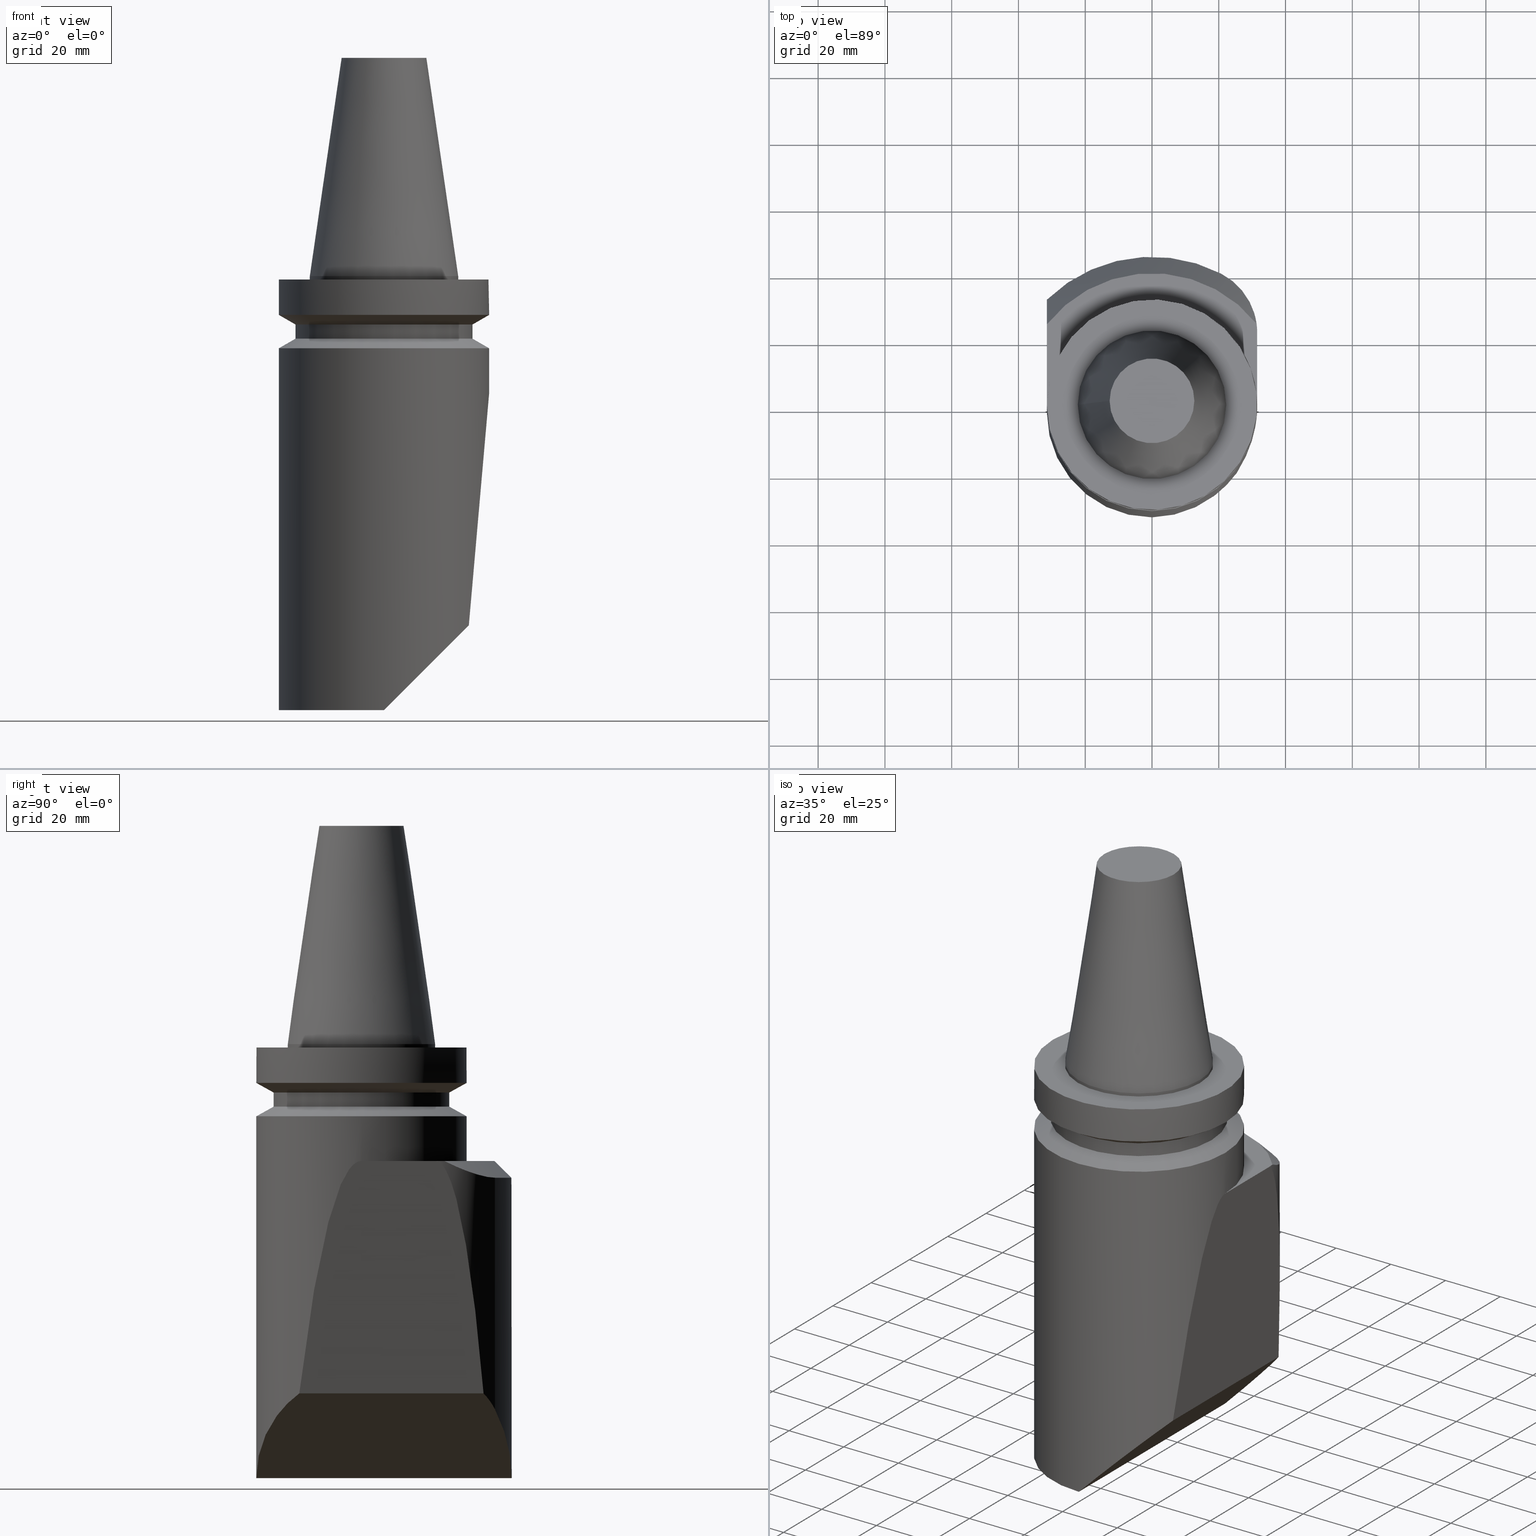
[diagram: canonical four-view strip — front | top / right | iso, engineering-drawing reading convention]
A machine part, canonical four-view strip (front | top / right | iso — engineering-drawing reading convention). The complete STEP part file that produces these views, byte-faithful:
ISO-10303-21;
HEADER;
FILE_DESCRIPTION((''),'1');
FILE_NAME('T:/21_DXF\X2\30C730FC30BF4F5C621057FA6E96\X0\/BBT40M-180-BH25L-130.stp','2017-05-02T05:34:34',(''),(''),'Spatial Interop R21 SP3','Kubotek KeyCreator 2011 V10.0.2 (22737)',' ');
FILE_SCHEMA(('automotive_design'));
ENDSEC;
DATA;
#1=MECHANICAL_DESIGN_GEOMETRIC_PRESENTATION_REPRESENTATION(' ',(#10,#11,#12,#13,#14,#15,#16,#17,#18,#19,#20,#21,#22,#23,#24,#25,#26,#27,#28,#29,#30,#31,#32,#33,#34,#35,#36,#37,#38,#39,#40,#41,#42,#43,#44,#45,#46,#47,#48,#49,#50,#51,#52,#53,#54,#55,#56,#57,#58,#59,#60,#61,#62,#63,#64,#65,#66,#67,#68,#69,#70,#71),#6);
#2=PRODUCT_DEFINITION_CONTEXT('',#72,'design');
#3=APPLICATION_PROTOCOL_DEFINITION('INTERNATIONAL STANDARD','automotive_design',1994,#72);
#4=PRODUCT_CATEGORY_RELATIONSHIP('NONE','NONE',#73,#74);
#5=SHAPE_DEFINITION_REPRESENTATION(#75,#76);
#6= (GEOMETRIC_REPRESENTATION_CONTEXT(3)GLOBAL_UNCERTAINTY_ASSIGNED_CONTEXT((#79))GLOBAL_UNIT_ASSIGNED_CONTEXT((#81,#82,#83))REPRESENTATION_CONTEXT('NONE','WORKSPACE'));
#10=STYLED_ITEM('',(#85),#86);
#11=STYLED_ITEM('',(#87,#88),#89);
#12=STYLED_ITEM('',(#90),#91);
#13=STYLED_ITEM('',(#92),#93);
#14=STYLED_ITEM('',(#94,#95),#96);
#15=STYLED_ITEM('',(#97,#98),#99);
#16=STYLED_ITEM('',(#100),#101);
#17=STYLED_ITEM('',(#102),#103);
#18=STYLED_ITEM('',(#104),#105);
#19=STYLED_ITEM('',(#106),#107);
#20=STYLED_ITEM('',(#108),#109);
#21=STYLED_ITEM('',(#110),#111);
#22=STYLED_ITEM('',(#112,#113),#114);
#23=STYLED_ITEM('',(#115),#116);
#24=STYLED_ITEM('',(#117),#118);
#25=STYLED_ITEM('',(#119),#120);
#26=STYLED_ITEM('',(#121),#122);
#27=STYLED_ITEM('',(#123),#124);
#28=STYLED_ITEM('',(#125),#126);
#29=STYLED_ITEM('',(#127),#128);
#30=STYLED_ITEM('',(#129,#130),#131);
#31=STYLED_ITEM('',(#132,#133),#134);
#32=STYLED_ITEM('',(#135),#136);
#33=STYLED_ITEM('',(#137),#138);
#34=STYLED_ITEM('',(#139,#140),#141);
#35=STYLED_ITEM('',(#142),#143);
#36=STYLED_ITEM('',(#144,#145),#146);
#37=STYLED_ITEM('',(#147,#148),#149);
#38=STYLED_ITEM('',(#150),#151);
#39=STYLED_ITEM('',(#152,#153),#154);
#40=STYLED_ITEM('',(#155),#156);
#41=STYLED_ITEM('',(#157),#158);
#42=STYLED_ITEM('',(#159),#160);
#43=STYLED_ITEM('',(#161),#162);
#44=STYLED_ITEM('',(#163,#164),#165);
#45=STYLED_ITEM('',(#166),#167);
#46=STYLED_ITEM('',(#168),#169);
#47=STYLED_ITEM('',(#170,#171),#172);
#48=STYLED_ITEM('',(#173,#174),#175);
#49=STYLED_ITEM('',(#176),#177);
#50=STYLED_ITEM('',(#178),#179);
#51=STYLED_ITEM('',(#180,#181),#182);
#52=STYLED_ITEM('',(#183,#184),#185);
#53=STYLED_ITEM('',(#186,#187),#188);
#54=STYLED_ITEM('',(#189,#190),#191);
#55=STYLED_ITEM('',(#192),#193);
#56=STYLED_ITEM('',(#194),#195);
#57=STYLED_ITEM('',(#196),#197);
#58=STYLED_ITEM('',(#198),#199);
#59=STYLED_ITEM('',(#200,#201),#202);
#60=STYLED_ITEM('',(#203),#204);
#61=STYLED_ITEM('',(#205),#206);
#62=STYLED_ITEM('',(#207),#208);
#63=STYLED_ITEM('',(#209),#210);
#64=STYLED_ITEM('',(#211),#212);
#65=STYLED_ITEM('',(#213,#214),#215);
#66=STYLED_ITEM('',(#216,#217),#218);
#67=STYLED_ITEM('',(#219),#220);
#68=STYLED_ITEM('',(#221,#222),#223);
#69=STYLED_ITEM('',(#224,#225),#226);
#70=STYLED_ITEM('',(#227),#228);
#71=STYLED_ITEM('',(#229),#230);
#72=APPLICATION_CONTEXT(' ');
#73=PRODUCT_CATEGORY('part','NONE');
#74=PRODUCT_RELATED_PRODUCT_CATEGORY('detail',' ',(#231));
#75=PRODUCT_DEFINITION_SHAPE('NONE','NONE',#232);
#76=ADVANCED_BREP_SHAPE_REPRESENTATION('240[2]',(#89,#233),#6);
#79=UNCERTAINTY_MEASURE_WITH_UNIT(LENGTH_MEASURE(1.0E-006),#81,'','');
#81= (CONVERSION_BASED_UNIT('MILLIMETRE',#236)LENGTH_UNIT()NAMED_UNIT(#239));
#82= (NAMED_UNIT(#241)PLANE_ANGLE_UNIT()SI_UNIT($,.RADIAN.));
#83= (NAMED_UNIT(#241)SOLID_ANGLE_UNIT()SI_UNIT($,.STERADIAN.));
#85=PRESENTATION_STYLE_ASSIGNMENT((#247));
#86=EDGE_CURVE('240[2]',#248,#249,#250,.T.);
#87=PRESENTATION_STYLE_ASSIGNMENT((#251));
#88=PRESENTATION_STYLE_ASSIGNMENT((#252));
#89=MANIFOLD_SOLID_BREP('240[2]',#253);
#90=PRESENTATION_STYLE_ASSIGNMENT((#254));
#91=EDGE_CURVE('240[2]',#255,#248,#256,.T.);
#92=PRESENTATION_STYLE_ASSIGNMENT((#257));
#93=EDGE_CURVE('240[2]',#258,#259,#260,.T.);
#94=PRESENTATION_STYLE_ASSIGNMENT((#261));
#95=PRESENTATION_STYLE_ASSIGNMENT((#262));
#96=ADVANCED_FACE('240[2]',(#263),#264,.F.);
#97=PRESENTATION_STYLE_ASSIGNMENT((#265));
#98=PRESENTATION_STYLE_ASSIGNMENT((#266));
#99=ADVANCED_FACE('240[2]',(#267),#268,.F.);
#100=PRESENTATION_STYLE_ASSIGNMENT((#269));
#101=EDGE_CURVE('240[2]',#259,#270,#271,.F.);
#102=PRESENTATION_STYLE_ASSIGNMENT((#272));
#103=EDGE_CURVE('240[2]',#273,#274,#275,.T.);
#104=PRESENTATION_STYLE_ASSIGNMENT((#276));
#105=EDGE_CURVE('240[2]',#277,#278,#279,.T.);
#106=PRESENTATION_STYLE_ASSIGNMENT((#280));
#107=EDGE_CURVE('240[2]',#281,#258,#282,.F.);
#108=PRESENTATION_STYLE_ASSIGNMENT((#283));
#109=EDGE_CURVE('240[2]',#284,#285,#286,.F.);
#110=PRESENTATION_STYLE_ASSIGNMENT((#287));
#111=EDGE_CURVE('240[2]',#288,#288,#289,.T.);
#112=PRESENTATION_STYLE_ASSIGNMENT((#290));
#113=PRESENTATION_STYLE_ASSIGNMENT((#291));
#114=ADVANCED_FACE('240[2]',(#292),#293,.T.);
#115=PRESENTATION_STYLE_ASSIGNMENT((#294));
#116=EDGE_CURVE('240[2]',#277,#255,#295,.T.);
#117=PRESENTATION_STYLE_ASSIGNMENT((#296));
#118=EDGE_CURVE('240[2]',#278,#297,#298,.T.);
#119=PRESENTATION_STYLE_ASSIGNMENT((#299));
#120=EDGE_CURVE('240[2]',#277,#300,#301,.T.);
#121=PRESENTATION_STYLE_ASSIGNMENT((#302));
#122=EDGE_CURVE('240[2]',#303,#303,#304,.T.);
#123=PRESENTATION_STYLE_ASSIGNMENT((#305));
#124=EDGE_CURVE('240[2]',#297,#255,#306,.T.);
#125=PRESENTATION_STYLE_ASSIGNMENT((#307));
#126=EDGE_CURVE('240[2]',#259,#273,#308,.T.);
#127=PRESENTATION_STYLE_ASSIGNMENT((#309));
#128=EDGE_CURVE('240[2]',#270,#285,#310,.T.);
#129=PRESENTATION_STYLE_ASSIGNMENT((#311));
#130=PRESENTATION_STYLE_ASSIGNMENT((#312));
#131=ADVANCED_FACE('240[2]',(#313),#314,.T.);
#132=PRESENTATION_STYLE_ASSIGNMENT((#315));
#133=PRESENTATION_STYLE_ASSIGNMENT((#316));
#134=ADVANCED_FACE('240[2]',(#317),#318,.T.);
#135=PRESENTATION_STYLE_ASSIGNMENT((#319));
#136=EDGE_CURVE('240[2]',#249,#297,#320,.T.);
#137=PRESENTATION_STYLE_ASSIGNMENT((#321));
#138=EDGE_CURVE('240[2]',#322,#278,#323,.T.);
#139=PRESENTATION_STYLE_ASSIGNMENT((#324));
#140=PRESENTATION_STYLE_ASSIGNMENT((#325));
#141=ADVANCED_FACE('240[2]',(#326),#327,.T.);
#142=PRESENTATION_STYLE_ASSIGNMENT((#328));
#143=EDGE_CURVE('240[2]',#285,#329,#330,.T.);
#144=PRESENTATION_STYLE_ASSIGNMENT((#331));
#145=PRESENTATION_STYLE_ASSIGNMENT((#332));
#146=ADVANCED_FACE('240[2]',(#333),#334,.T.);
#147=PRESENTATION_STYLE_ASSIGNMENT((#335));
#148=PRESENTATION_STYLE_ASSIGNMENT((#336));
#149=ADVANCED_FACE('240[2]',(#337),#338,.F.);
#150=PRESENTATION_STYLE_ASSIGNMENT((#339));
#151=EDGE_CURVE('240[2]',#340,#277,#341,.T.);
#152=PRESENTATION_STYLE_ASSIGNMENT((#342));
#153=PRESENTATION_STYLE_ASSIGNMENT((#343));
#154=ADVANCED_FACE('240[2]',(#344,#345),#346,.T.);
#155=PRESENTATION_STYLE_ASSIGNMENT((#347));
#156=EDGE_CURVE('240[2]',#348,#348,#349,.T.);
#157=PRESENTATION_STYLE_ASSIGNMENT((#350));
#158=EDGE_CURVE('240[2]',#340,#351,#352,.T.);
#159=PRESENTATION_STYLE_ASSIGNMENT((#353));
#160=EDGE_CURVE('240[2]',#274,#281,#354,.T.);
#161=PRESENTATION_STYLE_ASSIGNMENT((#355));
#162=EDGE_CURVE('240[2]',#248,#258,#356,.T.);
#163=PRESENTATION_STYLE_ASSIGNMENT((#357));
#164=PRESENTATION_STYLE_ASSIGNMENT((#358));
#165=ADVANCED_FACE('240[2]',(#359,#360),#361,.F.);
#166=PRESENTATION_STYLE_ASSIGNMENT((#362));
#167=EDGE_CURVE('240[2]',#351,#281,#363,.T.);
#168=PRESENTATION_STYLE_ASSIGNMENT((#364));
#169=EDGE_CURVE('240[2]',#365,#365,#366,.T.);
#170=PRESENTATION_STYLE_ASSIGNMENT((#367));
#171=PRESENTATION_STYLE_ASSIGNMENT((#368));
#172=ADVANCED_FACE('240[2]',(#369),#370,.T.);
#173=PRESENTATION_STYLE_ASSIGNMENT((#371));
#174=PRESENTATION_STYLE_ASSIGNMENT((#372));
#175=ADVANCED_FACE('240[2]',(#373),#374,.T.);
#176=PRESENTATION_STYLE_ASSIGNMENT((#375));
#177=EDGE_CURVE('240[2]',#376,#376,#377,.T.);
#178=PRESENTATION_STYLE_ASSIGNMENT((#378));
#179=EDGE_CURVE('240[2]',#322,#300,#379,.T.);
#180=PRESENTATION_STYLE_ASSIGNMENT((#380));
#181=PRESENTATION_STYLE_ASSIGNMENT((#381));
#182=ADVANCED_FACE('240[2]',(#382,#383),#384,.T.);
#183=PRESENTATION_STYLE_ASSIGNMENT((#385));
#184=PRESENTATION_STYLE_ASSIGNMENT((#386));
#185=ADVANCED_FACE('240[2]',(#387,#388),#389,.T.);
#186=PRESENTATION_STYLE_ASSIGNMENT((#390));
#187=PRESENTATION_STYLE_ASSIGNMENT((#391));
#188=ADVANCED_FACE('240[2]',(#392,#393),#394,.T.);
#189=PRESENTATION_STYLE_ASSIGNMENT((#395));
#190=PRESENTATION_STYLE_ASSIGNMENT((#396));
#191=ADVANCED_FACE('240[2]',(#397,#398),#399,.T.);
#192=PRESENTATION_STYLE_ASSIGNMENT((#400));
#193=EDGE_CURVE('240[2]',#401,#284,#402,.T.);
#194=PRESENTATION_STYLE_ASSIGNMENT((#403));
#195=EDGE_CURVE('240[2]',#404,#351,#405,.T.);
#196=PRESENTATION_STYLE_ASSIGNMENT((#406));
#197=EDGE_CURVE('240[2]',#407,#407,#408,.T.);
#198=PRESENTATION_STYLE_ASSIGNMENT((#409));
#199=EDGE_CURVE('240[2]',#404,#401,#410,.T.);
#200=PRESENTATION_STYLE_ASSIGNMENT((#411));
#201=PRESENTATION_STYLE_ASSIGNMENT((#412));
#202=ADVANCED_FACE('240[2]',(#413),#414,.F.);
#203=PRESENTATION_STYLE_ASSIGNMENT((#415));
#204=EDGE_CURVE('240[2]',#249,#322,#416,.T.);
#205=PRESENTATION_STYLE_ASSIGNMENT((#417));
#206=EDGE_CURVE('240[2]',#418,#418,#419,.T.);
#207=PRESENTATION_STYLE_ASSIGNMENT((#420));
#208=EDGE_CURVE('240[2]',#421,#421,#422,.T.);
#209=PRESENTATION_STYLE_ASSIGNMENT((#423));
#210=EDGE_CURVE('240[2]',#300,#270,#424,.T.);
#211=PRESENTATION_STYLE_ASSIGNMENT((#425));
#212=EDGE_CURVE('240[2]',#274,#404,#426,.T.);
#213=PRESENTATION_STYLE_ASSIGNMENT((#427));
#214=PRESENTATION_STYLE_ASSIGNMENT((#428));
#215=ADVANCED_FACE('240[2]',(#429),#430,.T.);
#216=PRESENTATION_STYLE_ASSIGNMENT((#431));
#217=PRESENTATION_STYLE_ASSIGNMENT((#432));
#218=ADVANCED_FACE('240[2]',(#433,#434),#435,.T.);
#219=PRESENTATION_STYLE_ASSIGNMENT((#436));
#220=EDGE_CURVE('240[2]',#329,#340,#437,.T.);
#221=PRESENTATION_STYLE_ASSIGNMENT((#438));
#222=PRESENTATION_STYLE_ASSIGNMENT((#439));
#223=ADVANCED_FACE('240[2]',(#440,#441),#442,.T.);
#224=PRESENTATION_STYLE_ASSIGNMENT((#443));
#225=PRESENTATION_STYLE_ASSIGNMENT((#444));
#226=ADVANCED_FACE('240[2]',(#445),#446,.T.);
#227=PRESENTATION_STYLE_ASSIGNMENT((#447));
#228=EDGE_CURVE('240[2]',#401,#329,#448,.T.);
#229=PRESENTATION_STYLE_ASSIGNMENT((#449));
#230=EDGE_CURVE('240[2]',#273,#284,#450,.F.);
#231=PRODUCT('240[2]','240[2]','PART-240[2]-DESC',(#451));
#232=PRODUCT_DEFINITION('NONE','NONE',#452,#2);
#233=AXIS2_PLACEMENT_3D('',#453,#454,#455);
#236=LENGTH_MEASURE_WITH_UNIT(LENGTH_MEASURE(1.0),#456);
#239=DIMENSIONAL_EXPONENTS(1.0,0.0,0.0,0.0,0.0,0.0,0.0);
#241=DIMENSIONAL_EXPONENTS(0.0,0.0,0.0,0.0,0.0,0.0,0.0);
#247=CURVE_STYLE('',#457,POSITIVE_LENGTH_MEASURE(1000.0),#458);
#248=VERTEX_POINT('',#459);
#249=VERTEX_POINT('',#460);
#250=LINE('',#461,#462);
#251=SURFACE_STYLE_USAGE(.BOTH.,#463);
#252=CURVE_STYLE('',#464,POSITIVE_LENGTH_MEASURE(1000.0),#465);
#253=CLOSED_SHELL('',(#114,#226,#146,#96,#175,#134,#149,#141,#182,#215,#131,#172,#99,#202,#154,#218,#165,#185,#188,#191,#223));
#254=CURVE_STYLE('',#466,POSITIVE_LENGTH_MEASURE(1000.0),#467);
#255=VERTEX_POINT('',#468);
#256=LINE('',#469,#470);
#257=CURVE_STYLE('',#471,POSITIVE_LENGTH_MEASURE(1000.0),#472);
#258=VERTEX_POINT('',#473);
#259=VERTEX_POINT('',#474);
#260=CIRCLE('',#475,45.0);
#261=SURFACE_STYLE_USAGE(.BOTH.,#476);
#262=CURVE_STYLE('',#477,POSITIVE_LENGTH_MEASURE(1000.0),#478);
#263=FACE_OUTER_BOUND('',#479,.T.);
#264=PLANE('',#480);
#265=SURFACE_STYLE_USAGE(.BOTH.,#481);
#266=CURVE_STYLE('',#482,POSITIVE_LENGTH_MEASURE(1000.0),#483);
#267=FACE_OUTER_BOUND('',#484,.T.);
#268=PLANE('',#485);
#269=CURVE_STYLE('',#486,POSITIVE_LENGTH_MEASURE(1000.0),#487);
#270=VERTEX_POINT('',#488);
#271=LINE('',#489,#490);
#272=CURVE_STYLE('',#491,POSITIVE_LENGTH_MEASURE(1000.0),#492);
#273=VERTEX_POINT('',#493);
#274=VERTEX_POINT('',#494);
#275=LINE('',#495,#496);
#276=CURVE_STYLE('',#497,POSITIVE_LENGTH_MEASURE(1000.0),#498);
#277=VERTEX_POINT('',#499);
#278=VERTEX_POINT('',#500);
#279=LINE('',#501,#502);
#280=CURVE_STYLE('',#503,POSITIVE_LENGTH_MEASURE(1000.0),#504);
#281=VERTEX_POINT('',#505);
#282=LINE('',#506,#507);
#283=CURVE_STYLE('',#508,POSITIVE_LENGTH_MEASURE(1000.0),#509);
#284=VERTEX_POINT('',#510);
#285=VERTEX_POINT('',#511);
#286=LINE('',#512,#513);
#287=CURVE_STYLE('',#514,POSITIVE_LENGTH_MEASURE(1000.0),#515);
#288=VERTEX_POINT('',#516);
#289=CIRCLE('',#517,22.225);
#290=SURFACE_STYLE_USAGE(.BOTH.,#518);
#291=CURVE_STYLE('',#519,POSITIVE_LENGTH_MEASURE(1000.0),#520);
#292=FACE_OUTER_BOUND('',#521,.T.);
#293=PLANE('',#522);
#294=CURVE_STYLE('',#523,POSITIVE_LENGTH_MEASURE(1000.0),#524);
#295=LINE('',#525,#526);
#296=CURVE_STYLE('',#527,POSITIVE_LENGTH_MEASURE(1000.0),#528);
#297=VERTEX_POINT('',#529);
#298=LINE('',#530,#531);
#299=CURVE_STYLE('',#532,POSITIVE_LENGTH_MEASURE(1000.0),#533);
#300=VERTEX_POINT('',#534);
#301=LINE('',#535,#536);
#302=CURVE_STYLE('',#537,POSITIVE_LENGTH_MEASURE(1000.0),#538);
#303=VERTEX_POINT('',#539);
#304=CIRCLE('',#540,31.5);
#305=CURVE_STYLE('',#541,POSITIVE_LENGTH_MEASURE(1000.0),#542);
#306=LINE('',#543,#544);
#307=CURVE_STYLE('',#545,POSITIVE_LENGTH_MEASURE(1000.0),#546);
#308=ELLIPSE('',#547,63.6396103067893,45.0);
#309=CURVE_STYLE('',#548,POSITIVE_LENGTH_MEASURE(1000.0),#549);
#310=ELLIPSE('',#550,44.5477272147525,31.5);
#311=SURFACE_STYLE_USAGE(.BOTH.,#551);
#312=CURVE_STYLE('',#552,POSITIVE_LENGTH_MEASURE(1000.0),#553);
#313=FACE_OUTER_BOUND('',#554,.T.);
#314=PLANE('',#555);
#315=SURFACE_STYLE_USAGE(.BOTH.,#556);
#316=CURVE_STYLE('',#557,POSITIVE_LENGTH_MEASURE(1000.0),#558);
#317=FACE_OUTER_BOUND('',#559,.T.);
#318=CYLINDRICAL_SURFACE('',#560,20.0);
#319=CURVE_STYLE('',#561,POSITIVE_LENGTH_MEASURE(1000.0),#562);
#320=LINE('',#563,#564);
#321=CURVE_STYLE('',#565,POSITIVE_LENGTH_MEASURE(1000.0),#566);
#322=VERTEX_POINT('',#567);
#323=LINE('',#568,#569);
#324=SURFACE_STYLE_USAGE(.BOTH.,#570);
#325=CURVE_STYLE('',#571,POSITIVE_LENGTH_MEASURE(1000.0),#572);
#326=FACE_OUTER_BOUND('',#573,.T.);
#327=CYLINDRICAL_SURFACE('',#574,45.0);
#328=CURVE_STYLE('',#575,POSITIVE_LENGTH_MEASURE(1000.0),#576);
#329=VERTEX_POINT('',#577);
#330=ELLIPSE('',#578,361.421967366517,31.5);
#331=SURFACE_STYLE_USAGE(.BOTH.,#579);
#332=CURVE_STYLE('',#580,POSITIVE_LENGTH_MEASURE(1000.0),#581);
#333=FACE_OUTER_BOUND('',#582,.T.);
#334=PLANE('',#583);
#335=SURFACE_STYLE_USAGE(.BOTH.,#584);
#336=CURVE_STYLE('',#585,POSITIVE_LENGTH_MEASURE(1000.0),#586);
#337=FACE_OUTER_BOUND('',#587,.T.);
#338=PLANE('',#588);
#339=CURVE_STYLE('',#589,POSITIVE_LENGTH_MEASURE(1000.0),#590);
#340=VERTEX_POINT('',#591);
#341=LINE('',#592,#593);
#342=SURFACE_STYLE_USAGE(.BOTH.,#594);
#343=CURVE_STYLE('',#595,POSITIVE_LENGTH_MEASURE(1000.0),#596);
#344=FACE_BOUND('',#597,.T.);
#345=FACE_BOUND('',#598,.T.);
#346=CONICAL_SURFACE('',#599,17.4562500022463,0.144812498171676);
#347=CURVE_STYLE('',#600,POSITIVE_LENGTH_MEASURE(1000.0),#601);
#348=VERTEX_POINT('',#602);
#349=CIRCLE('',#603,12.6875000044926);
#350=CURVE_STYLE('',#604,POSITIVE_LENGTH_MEASURE(1000.0),#605);
#351=VERTEX_POINT('',#606);
#352=LINE('',#607,#608);
#353=CURVE_STYLE('',#609,POSITIVE_LENGTH_MEASURE(1000.0),#610);
#354=CIRCLE('',#611,45.0);
#355=CURVE_STYLE('',#612,POSITIVE_LENGTH_MEASURE(1000.0),#613);
#356=LINE('',#614,#615);
#357=SURFACE_STYLE_USAGE(.BOTH.,#616);
#358=CURVE_STYLE('',#617,POSITIVE_LENGTH_MEASURE(1000.0),#618);
#359=FACE_OUTER_BOUND('',#619,.T.);
#360=FACE_BOUND('',#620,.T.);
#361=PLANE('',#621);
#362=CURVE_STYLE('',#622,POSITIVE_LENGTH_MEASURE(1000.0),#623);
#363=(B_SPLINE_CURVE(2,(#625,#626,#627),.UNSPECIFIED.,.F.,.F.)B_SPLINE_CURVE_WITH_KNOTS((3,3),(1269.79654633776,1343.3851522784),.UNSPECIFIED.)RATIONAL_B_SPLINE_CURVE((9.88857542016709,9.5972301136978,9.24226330118482))BOUNDED_CURVE()REPRESENTATION_ITEM('')GEOMETRIC_REPRESENTATION_ITEM()CURVE());
#364=CURVE_STYLE('',#634,POSITIVE_LENGTH_MEASURE(1000.0),#635);
#365=VERTEX_POINT('',#636);
#366=CIRCLE('',#637,31.5);
#367=SURFACE_STYLE_USAGE(.BOTH.,#638);
#368=CURVE_STYLE('',#639,POSITIVE_LENGTH_MEASURE(1000.0),#640);
#369=FACE_OUTER_BOUND('',#641,.T.);
#370=CONICAL_SURFACE('',#642,42.5,0.785398163397448);
#371=SURFACE_STYLE_USAGE(.BOTH.,#643);
#372=CURVE_STYLE('',#644,POSITIVE_LENGTH_MEASURE(1000.0),#645);
#373=FACE_OUTER_BOUND('',#646,.T.);
#374=PLANE('',#647);
#375=CURVE_STYLE('',#648,POSITIVE_LENGTH_MEASURE(1000.0),#649);
#376=VERTEX_POINT('',#650);
#377=CIRCLE('',#651,22.225);
#378=CURVE_STYLE('',#652,POSITIVE_LENGTH_MEASURE(1000.0),#653);
#379=LINE('',#654,#655);
#380=SURFACE_STYLE_USAGE(.BOTH.,#656);
#381=CURVE_STYLE('',#657,POSITIVE_LENGTH_MEASURE(1000.0),#658);
#382=FACE_BOUND('',#659,.T.);
#383=FACE_BOUND('',#660,.T.);
#384=CYLINDRICAL_SURFACE('',#661,31.5);
#385=SURFACE_STYLE_USAGE(.BOTH.,#662);
#386=CURVE_STYLE('',#663,POSITIVE_LENGTH_MEASURE(1000.0),#664);
#387=FACE_BOUND('',#665,.T.);
#388=FACE_BOUND('',#666,.T.);
#389=CONICAL_SURFACE('',#667,29.0,1.04719755058882);
#390=SURFACE_STYLE_USAGE(.BOTH.,#668);
#391=CURVE_STYLE('',#669,POSITIVE_LENGTH_MEASURE(1000.0),#670);
#392=FACE_BOUND('',#671,.T.);
#393=FACE_BOUND('',#672,.T.);
#394=CYLINDRICAL_SURFACE('',#673,26.5);
#395=SURFACE_STYLE_USAGE(.BOTH.,#674);
#396=CURVE_STYLE('',#675,POSITIVE_LENGTH_MEASURE(1000.0),#676);
#397=FACE_BOUND('',#677,.T.);
#398=FACE_BOUND('',#678,.T.);
#399=CONICAL_SURFACE('',#679,29.0,1.04719755058882);
#400=CURVE_STYLE('',#680,POSITIVE_LENGTH_MEASURE(1000.0),#681);
#401=VERTEX_POINT('',#682);
#402=ELLIPSE('',#683,229.474264994614,20.0);
#403=CURVE_STYLE('',#684,POSITIVE_LENGTH_MEASURE(1000.0),#685);
#404=VERTEX_POINT('',#686);
#405=CIRCLE('',#687,40.0);
#406=CURVE_STYLE('',#688,POSITIVE_LENGTH_MEASURE(1000.0),#689);
#407=VERTEX_POINT('',#690);
#408=CIRCLE('',#691,26.5);
#409=CURVE_STYLE('',#692,POSITIVE_LENGTH_MEASURE(1000.0),#693);
#410=CIRCLE('',#694,20.0);
#411=SURFACE_STYLE_USAGE(.BOTH.,#695);
#412=CURVE_STYLE('',#696,POSITIVE_LENGTH_MEASURE(1000.0),#697);
#413=FACE_OUTER_BOUND('',#698,.T.);
#414=PLANE('',#699);
#415=CURVE_STYLE('',#700,POSITIVE_LENGTH_MEASURE(1000.0),#701);
#416=LINE('',#702,#703);
#417=CURVE_STYLE('',#704,POSITIVE_LENGTH_MEASURE(1000.0),#705);
#418=VERTEX_POINT('',#706);
#419=CIRCLE('',#707,26.5);
#420=CURVE_STYLE('',#708,POSITIVE_LENGTH_MEASURE(1000.0),#709);
#421=VERTEX_POINT('',#710);
#422=CIRCLE('',#711,31.5);
#423=CURVE_STYLE('',#712,POSITIVE_LENGTH_MEASURE(1000.0),#713);
#424=CIRCLE('',#714,31.5);
#425=CURVE_STYLE('',#715,POSITIVE_LENGTH_MEASURE(1000.0),#716);
#426=B_SPLINE_CURVE_WITH_KNOTS('',3,(#717,#718,#719,#720,#721,#722,#723,#724,#725,#726,#727,#728),.UNSPECIFIED.,.F.,.F.,(4,2,2,2,2,4),(3.6448240647727,4.06943192137555,4.49403977797839,4.91864763458123,5.34325549118408,5.58489350391862),.UNSPECIFIED.);
#427=SURFACE_STYLE_USAGE(.BOTH.,#729);
#428=CURVE_STYLE('',#730,POSITIVE_LENGTH_MEASURE(1000.0),#731);
#429=FACE_OUTER_BOUND('',#732,.T.);
#430=PLANE('',#733);
#431=SURFACE_STYLE_USAGE(.BOTH.,#734);
#432=CURVE_STYLE('',#735,POSITIVE_LENGTH_MEASURE(1000.0),#736);
#433=FACE_BOUND('',#737,.T.);
#434=FACE_BOUND('',#738,.T.);
#435=CYLINDRICAL_SURFACE('',#739,22.225);
#436=CURVE_STYLE('',#740,POSITIVE_LENGTH_MEASURE(1000.0),#741);
#437=CIRCLE('',#742,31.5);
#438=SURFACE_STYLE_USAGE(.BOTH.,#743);
#439=CURVE_STYLE('',#744,POSITIVE_LENGTH_MEASURE(1000.0),#745);
#440=FACE_BOUND('',#746,.T.);
#441=FACE_BOUND('',#747,.T.);
#442=CYLINDRICAL_SURFACE('',#748,31.5);
#443=SURFACE_STYLE_USAGE(.BOTH.,#749);
#444=CURVE_STYLE('',#750,POSITIVE_LENGTH_MEASURE(1000.0),#751);
#445=FACE_OUTER_BOUND('',#752,.T.);
#446=PLANE('',#753);
#447=CURVE_STYLE('',#754,POSITIVE_LENGTH_MEASURE(1000.0),#755);
#448=LINE('',#756,#757);
#449=CURVE_STYLE('',#758,POSITIVE_LENGTH_MEASURE(1000.0),#759);
#450=ELLIPSE('',#760,28.2842712474619,20.0);
#451=PRODUCT_CONTEXT('',#72,'mechanical');
#452=PRODUCT_DEFINITION_FORMATION_WITH_SPECIFIED_SOURCE(' ','NONE',#231,.NOT_KNOWN.);
#453=CARTESIAN_POINT('',(0.0,0.0,0.0));
#454=DIRECTION('',(0.0,0.0,1.0));
#455=DIRECTION('',(1.0,0.0,0.0));
#456= (NAMED_UNIT(#239)LENGTH_UNIT()SI_UNIT(.MILLI.,.METRE.));
#457=DRAUGHTING_PRE_DEFINED_CURVE_FONT('continuous');
#458=COLOUR_RGB('',0.0,1.0,1.0);
#459=CARTESIAN_POINT('',(-31.4999999979768,25.0,-130.0));
#460=CARTESIAN_POINT('',(-6.5000056898272,25.0,-130.0));
#461=CARTESIAN_POINT('',(-30.4999999979768,25.0,-130.0));
#462=VECTOR('',#762,23.9999943081496);
#463=SURFACE_SIDE_STYLE('',(#763));
#464=DRAUGHTING_PRE_DEFINED_CURVE_FONT('continuous');
#465=COLOUR_RGB('',0.0,1.0,1.0);
#466=DRAUGHTING_PRE_DEFINED_CURVE_FONT('continuous');
#467=COLOUR_RGB('',0.0,1.0,1.0);
#468=CARTESIAN_POINT('',(-31.5000056898272,25.0,-40.0));
#469=CARTESIAN_POINT('',(-31.4999999979768,25.0,-40.0));
#470=VECTOR('',#764,89.000000002308);
#471=DRAUGHTING_PRE_DEFINED_CURVE_FONT('continuous');
#472=COLOUR_RGB('',0.0,1.0,1.0);
#473=CARTESIAN_POINT('',(-31.4999999979768,32.136427930426,-130.0));
#474=CARTESIAN_POINT('',(6.03176401738128E-009,45.0,-130.0));
#475=AXIS2_PLACEMENT_3D('',#765,#766,#767);
#476=SURFACE_SIDE_STYLE('',(#768));
#477=DRAUGHTING_PRE_DEFINED_CURVE_FONT('continuous');
#478=COLOUR_RGB('',0.0,1.0,1.0);
#479=EDGE_LOOP('',(#769,#770,#771,#772));
#480=AXIS2_PLACEMENT_3D('',#773,#774,#775);
#481=SURFACE_SIDE_STYLE('',(#776));
#482=DRAUGHTING_PRE_DEFINED_CURVE_FONT('continuous');
#483=COLOUR_RGB('',0.0,1.0,1.0);
#484=EDGE_LOOP('',(#777,#778,#779,#780,#781,#782,#783));
#485=AXIS2_PLACEMENT_3D('',#784,#785,#786);
#486=DRAUGHTING_PRE_DEFINED_CURVE_FONT('continuous');
#487=COLOUR_RGB('',0.0,1.0,1.0);
#488=CARTESIAN_POINT('',(6.03177338592929E-009,-31.5,-130.0));
#489=CARTESIAN_POINT('',(6.03176952829187E-009,-7.4257880526741E-015,-130.0));
#490=VECTOR('',#787,1.0);
#491=DRAUGHTING_PRE_DEFINED_CURVE_FONT('continuous');
#492=COLOUR_RGB('',0.0,1.0,1.0);
#493=CARTESIAN_POINT('',(20.7000000005566,39.9563511844732,-109.300000005474));
#494=CARTESIAN_POINT('',(20.7000000003111,39.9563511842665,-39.9999999997035));
#495=CARTESIAN_POINT('',(20.7000000003111,39.9563511839994,-109.1129855535));
#496=VECTOR('',#788,69.1129855537965);
#497=DRAUGHTING_PRE_DEFINED_CURVE_FONT('continuous');
#498=COLOUR_RGB('',0.0,1.0,1.0);
#499=CARTESIAN_POINT('',(-31.5000056898272,-8.23575076947025E-015,-40.0));
#500=CARTESIAN_POINT('',(-6.50000568982718,-3.64332527266767E-015,-40.0));
#501=CARTESIAN_POINT('',(-31.5000056898272,-8.23575076947025E-015,-40.0));
#502=VECTOR('',#789,25.0);
#503=DRAUGHTING_PRE_DEFINED_CURVE_FONT('continuous');
#504=COLOUR_RGB('',0.0,1.0,1.0);
#505=CARTESIAN_POINT('',(-31.4999999979768,32.136427930426,-40.0));
#506=CARTESIAN_POINT('',(-31.4999999979768,32.136427930426,-83.0));
#507=VECTOR('',#790,1.0);
#508=DRAUGHTING_PRE_DEFINED_CURVE_FONT('continuous');
#509=COLOUR_RGB('',0.0,1.0,1.0);
#510=CARTESIAN_POINT('',(25.4118234369349,36.5667295647082,-104.588176569097));
#511=CARTESIAN_POINT('',(25.4118234369349,-18.6142211658196,-104.588176569097));
#512=CARTESIAN_POINT('',(25.4118234369349,-1.7361025483191E-015,-104.588176569097));
#513=VECTOR('',#791,1.0);
#514=DRAUGHTING_PRE_DEFINED_CURVE_FONT('continuous');
#515=COLOUR_RGB('',0.0,1.0,1.0);
#516=CARTESIAN_POINT('',(-22.225,-4.08266626665749E-015,2.72177751110499E-015));
#517=AXIS2_PLACEMENT_3D('',#792,#793,#794);
#518=SURFACE_SIDE_STYLE('',(#795));
#519=DRAUGHTING_PRE_DEFINED_CURVE_FONT('continuous');
#520=COLOUR_RGB('',0.0,1.0,1.0);
#521=EDGE_LOOP('',(#796,#797,#798,#799));
#522=AXIS2_PLACEMENT_3D('',#800,#801,#802);
#523=DRAUGHTING_PRE_DEFINED_CURVE_FONT('continuous');
#524=COLOUR_RGB('',0.0,1.0,1.0);
#525=CARTESIAN_POINT('',(-31.4999999979768,-8.88178419700125E-015,-40.0));
#526=VECTOR('',#803,25.0);
#527=DRAUGHTING_PRE_DEFINED_CURVE_FONT('continuous');
#528=COLOUR_RGB('',0.0,1.0,1.0);
#529=CARTESIAN_POINT('',(-6.50000568982719,25.0,-40.0));
#530=CARTESIAN_POINT('',(-6.50000568982718,-3.64332527266767E-015,-40.0));
#531=VECTOR('',#804,25.0);
#532=DRAUGHTING_PRE_DEFINED_CURVE_FONT('continuous');
#533=COLOUR_RGB('',0.0,1.0,1.0);
#534=CARTESIAN_POINT('',(-31.5,-1.27363272337346E-014,-130.0));
#535=CARTESIAN_POINT('',(-31.4999999979768,-1.37466603200574E-014,-40.0));
#536=VECTOR('',#805,89.000000002308);
#537=DRAUGHTING_PRE_DEFINED_CURVE_FONT('continuous');
#538=COLOUR_RGB('',0.0,1.0,1.0);
#539=CARTESIAN_POINT('',(-31.5,-5.84768846592861E-015,-0.999999999999996));
#540=AXIS2_PLACEMENT_3D('',#806,#807,#808);
#541=DRAUGHTING_PRE_DEFINED_CURVE_FONT('continuous');
#542=COLOUR_RGB('',0.0,1.0,1.0);
#543=CARTESIAN_POINT('',(-6.50000568982719,25.0,-40.0));
#544=VECTOR('',#809,25.0);
#545=DRAUGHTING_PRE_DEFINED_CURVE_FONT('continuous');
#546=COLOUR_RGB('',0.0,1.0,1.0);
#547=AXIS2_PLACEMENT_3D('',#810,#811,#812);
#548=DRAUGHTING_PRE_DEFINED_CURVE_FONT('continuous');
#549=COLOUR_RGB('',0.0,1.0,1.0);
#550=AXIS2_PLACEMENT_3D('',#813,#814,#815);
#551=SURFACE_SIDE_STYLE('',(#816));
#552=DRAUGHTING_PRE_DEFINED_CURVE_FONT('continuous');
#553=COLOUR_RGB('',0.0,1.0,1.0);
#554=EDGE_LOOP('',(#817,#818,#819,#820,#821));
#555=AXIS2_PLACEMENT_3D('',#822,#823,#824);
#556=SURFACE_SIDE_STYLE('',(#825));
#557=DRAUGHTING_PRE_DEFINED_CURVE_FONT('continuous');
#558=COLOUR_RGB('',0.0,1.0,1.0);
#559=EDGE_LOOP('',(#826,#827,#828,#829,#830));
#560=AXIS2_PLACEMENT_3D('',#831,#832,#833);
#561=DRAUGHTING_PRE_DEFINED_CURVE_FONT('continuous');
#562=COLOUR_RGB('',0.0,1.0,1.0);
#563=CARTESIAN_POINT('',(-6.5000056898272,25.0,-130.0));
#564=VECTOR('',#834,90.0);
#565=DRAUGHTING_PRE_DEFINED_CURVE_FONT('continuous');
#566=COLOUR_RGB('',0.0,1.0,1.0);
#567=CARTESIAN_POINT('',(-6.50000568982719,-9.15423586883077E-015,-130.0));
#568=CARTESIAN_POINT('',(-6.50000568982719,-9.15423586883077E-015,-130.0));
#569=VECTOR('',#835,90.0);
#570=SURFACE_SIDE_STYLE('',(#836));
#571=DRAUGHTING_PRE_DEFINED_CURVE_FONT('continuous');
#572=COLOUR_RGB('',0.0,1.0,1.0);
#573=EDGE_LOOP('',(#837,#838,#839,#840,#841));
#574=AXIS2_PLACEMENT_3D('',#842,#843,#844);
#575=DRAUGHTING_PRE_DEFINED_CURVE_FONT('continuous');
#576=COLOUR_RGB('',0.0,1.0,1.0);
#577=CARTESIAN_POINT('',(31.5,3.64332422746338E-015,-35.0));
#578=AXIS2_PLACEMENT_3D('',#845,#846,#847);
#579=SURFACE_SIDE_STYLE('',(#848));
#580=DRAUGHTING_PRE_DEFINED_CURVE_FONT('continuous');
#581=COLOUR_RGB('',0.0,1.0,1.0);
#582=EDGE_LOOP('',(#849,#850,#851,#852));
#583=AXIS2_PLACEMENT_3D('',#853,#854,#855);
#584=SURFACE_SIDE_STYLE('',(#856));
#585=DRAUGHTING_PRE_DEFINED_CURVE_FONT('continuous');
#586=COLOUR_RGB('',0.0,1.0,1.0);
#587=EDGE_LOOP('',(#857,#858,#859,#860,#861));
#588=AXIS2_PLACEMENT_3D('',#862,#863,#864);
#589=DRAUGHTING_PRE_DEFINED_CURVE_FONT('continuous');
#590=COLOUR_RGB('',0.0,1.0,1.0);
#591=CARTESIAN_POINT('',(-31.5,-7.92958802447911E-015,-35.0));
#592=CARTESIAN_POINT('',(-31.4999999979768,-1.37466603200574E-014,-35.0));
#593=VECTOR('',#865,5.0);
#594=SURFACE_SIDE_STYLE('',(#866));
#595=DRAUGHTING_PRE_DEFINED_CURVE_FONT('continuous');
#596=COLOUR_RGB('',0.0,1.0,1.0);
#597=EDGE_LOOP('',(#867));
#598=EDGE_LOOP('',(#868));
#599=AXIS2_PLACEMENT_3D('',#869,#870,#871);
#600=DRAUGHTING_PRE_DEFINED_CURVE_FONT('continuous');
#601=COLOUR_RGB('',0.0,1.0,1.0);
#602=CARTESIAN_POINT('',(-12.6875000044926,1.67393909275927E-015,65.4));
#603=AXIS2_PLACEMENT_3D('',#872,#873,#874);
#604=DRAUGHTING_PRE_DEFINED_CURVE_FONT('continuous');
#605=COLOUR_RGB('',0.0,1.0,1.0);
#606=CARTESIAN_POINT('',(-31.4999999979768,24.6525860738272,-35.0));
#607=CARTESIAN_POINT('',(-31.4999999979768,-7.92958802447911E-015,-35.0));
#608=VECTOR('',#875,24.6525860738272);
#609=DRAUGHTING_PRE_DEFINED_CURVE_FONT('continuous');
#610=COLOUR_RGB('',0.0,1.0,1.0);
#611=AXIS2_PLACEMENT_3D('',#876,#877,#878);
#612=DRAUGHTING_PRE_DEFINED_CURVE_FONT('continuous');
#613=COLOUR_RGB('',0.0,1.0,1.0);
#614=CARTESIAN_POINT('',(-31.4999999979768,-1.27057105410387E-014,-130.0));
#615=VECTOR('',#879,1.0);
#616=SURFACE_SIDE_STYLE('',(#880));
#617=DRAUGHTING_PRE_DEFINED_CURVE_FONT('continuous');
#618=COLOUR_RGB('',0.0,1.0,1.0);
#619=EDGE_LOOP('',(#881));
#620=EDGE_LOOP('',(#882));
#621=AXIS2_PLACEMENT_3D('',#883,#884,#885);
#622=DRAUGHTING_PRE_DEFINED_CURVE_FONT('continuous');
#623=COLOUR_RGB('',0.0,1.0,1.0);
#625=CARTESIAN_POINT('',(-31.4999999979768,24.6525860738272,-35.0));
#626=CARTESIAN_POINT('',(-31.4999999979768,28.1743940063443,-37.1705418297966));
#627=CARTESIAN_POINT('',(-31.4999999979768,32.136427930426,-40.0));
#634=DRAUGHTING_PRE_DEFINED_CURVE_FONT('continuous');
#635=COLOUR_RGB('',0.0,1.0,1.0);
#636=CARTESIAN_POINT('',(31.5000000001728,4.46383758291774E-015,-21.6000000000998));
#637=AXIS2_PLACEMENT_3D('',#886,#887,#888);
#638=SURFACE_SIDE_STYLE('',(#889));
#639=DRAUGHTING_PRE_DEFINED_CURVE_FONT('continuous');
#640=COLOUR_RGB('',0.0,1.0,1.0);
#641=EDGE_LOOP('',(#890,#891,#892,#893));
#642=AXIS2_PLACEMENT_3D('',#894,#895,#896);
#643=SURFACE_SIDE_STYLE('',(#897));
#644=DRAUGHTING_PRE_DEFINED_CURVE_FONT('continuous');
#645=COLOUR_RGB('',0.0,1.0,1.0);
#646=EDGE_LOOP('',(#898,#899,#900,#901,#902,#903,#904));
#647=AXIS2_PLACEMENT_3D('',#905,#906,#907);
#648=DRAUGHTING_PRE_DEFINED_CURVE_FONT('continuous');
#649=COLOUR_RGB('',0.0,1.0,1.0);
#650=CARTESIAN_POINT('',(-22.225,-4.14389860661486E-015,-0.999999999999997));
#651=AXIS2_PLACEMENT_3D('',#908,#909,#910);
#652=DRAUGHTING_PRE_DEFINED_CURVE_FONT('continuous');
#653=COLOUR_RGB('',0.0,1.0,1.0);
#654=CARTESIAN_POINT('',(-6.50000568982719,-1.27363272337346E-014,-130.0));
#655=VECTOR('',#911,23.9999943081496);
#656=SURFACE_SIDE_STYLE('',(#912));
#657=DRAUGHTING_PRE_DEFINED_CURVE_FONT('continuous');
#658=COLOUR_RGB('',0.0,1.0,1.0);
#659=EDGE_LOOP('',(#913));
#660=EDGE_LOOP('',(#914));
#661=AXIS2_PLACEMENT_3D('',#915,#916,#917);
#662=SURFACE_SIDE_STYLE('',(#918));
#663=DRAUGHTING_PRE_DEFINED_CURVE_FONT('continuous');
#664=COLOUR_RGB('',0.0,1.0,1.0);
#665=EDGE_LOOP('',(#919));
#666=EDGE_LOOP('',(#920));
#667=AXIS2_PLACEMENT_3D('',#921,#922,#923);
#668=SURFACE_SIDE_STYLE('',(#924));
#669=DRAUGHTING_PRE_DEFINED_CURVE_FONT('continuous');
#670=COLOUR_RGB('',0.0,1.0,1.0);
#671=EDGE_LOOP('',(#925));
#672=EDGE_LOOP('',(#926));
#673=AXIS2_PLACEMENT_3D('',#927,#928,#929);
#674=SURFACE_SIDE_STYLE('',(#930));
#675=DRAUGHTING_PRE_DEFINED_CURVE_FONT('continuous');
#676=COLOUR_RGB('',0.0,1.0,1.0);
#677=EDGE_LOOP('',(#931));
#678=EDGE_LOOP('',(#932));
#679=AXIS2_PLACEMENT_3D('',#933,#934,#935);
#680=DRAUGHTING_PRE_DEFINED_CURVE_FONT('continuous');
#681=COLOUR_RGB('',0.0,1.0,1.0);
#682=CARTESIAN_POINT('',(31.5000000001728,22.1979728799997,-34.9999999980247));
#683=AXIS2_PLACEMENT_3D('',#936,#937,#938);
#684=DRAUGHTING_PRE_DEFINED_CURVE_FONT('continuous');
#685=COLOUR_RGB('',0.0,1.0,1.0);
#686=CARTESIAN_POINT('',(31.3190777410008,24.8820290461439,-35.0));
#687=AXIS2_PLACEMENT_3D('',#939,#940,#941);
#688=DRAUGHTING_PRE_DEFINED_CURVE_FONT('continuous');
#689=COLOUR_RGB('',0.0,1.0,1.0);
#690=CARTESIAN_POINT('',(-26.5,-5.75502871015178E-015,-14.48675135));
#691=AXIS2_PLACEMENT_3D('',#942,#943,#944);
#692=DRAUGHTING_PRE_DEFINED_CURVE_FONT('continuous');
#693=COLOUR_RGB('',0.0,1.0,1.0);
#694=AXIS2_PLACEMENT_3D('',#945,#946,#947);
#695=SURFACE_SIDE_STYLE('',(#948));
#696=DRAUGHTING_PRE_DEFINED_CURVE_FONT('continuous');
#697=COLOUR_RGB('',0.0,1.0,1.0);
#698=EDGE_LOOP('',(#949));
#699=AXIS2_PLACEMENT_3D('',#950,#951,#952);
#700=DRAUGHTING_PRE_DEFINED_CURVE_FONT('continuous');
#701=COLOUR_RGB('',0.0,1.0,1.0);
#702=CARTESIAN_POINT('',(-6.50000568982719,25.0,-130.0));
#703=VECTOR('',#953,25.0);
#704=DRAUGHTING_PRE_DEFINED_CURVE_FONT('continuous');
#705=COLOUR_RGB('',0.0,1.0,1.0);
#706=CARTESIAN_POINT('',(-26.5,-6.01382702965428E-015,-18.71324865));
#707=AXIS2_PLACEMENT_3D('',#954,#955,#956);
#708=DRAUGHTING_PRE_DEFINED_CURVE_FONT('continuous');
#709=COLOUR_RGB('',0.0,1.0,1.0);
#710=CARTESIAN_POINT('',(31.5000000001728,5.07616098249752E-015,-11.6));
#711=AXIS2_PLACEMENT_3D('',#957,#958,#959);
#712=DRAUGHTING_PRE_DEFINED_CURVE_FONT('continuous');
#713=COLOUR_RGB('',0.0,1.0,1.0);
#714=AXIS2_PLACEMENT_3D('',#960,#961,#962);
#715=DRAUGHTING_PRE_DEFINED_CURVE_FONT('continuous');
#716=COLOUR_RGB('',0.0,1.0,1.0);
#717=CARTESIAN_POINT('',(20.7000000003111,39.9563511842665,-39.9999999997035));
#718=CARTESIAN_POINT('',(21.9567244917306,39.3052858041324,-39.9999999997083));
#719=CARTESIAN_POINT('',(23.1716294908664,38.5038773242289,-39.915406152038));
#720=CARTESIAN_POINT('',(25.4050109414492,36.6465065579947,-39.5679453349064));
#721=CARTESIAN_POINT('',(26.4235938720837,35.59066700866,-39.3051067052726));
#722=CARTESIAN_POINT('',(28.1899230558646,33.312125702104,-38.6166259583971));
#723=CARTESIAN_POINT('',(28.9398045203835,32.0867683818523,-38.1900288645896));
#724=CARTESIAN_POINT('',(30.1408535510776,29.577243661181,-37.2088852936142));
#725=CARTESIAN_POINT('',(30.5920445768402,28.2931767156501,-36.6541106110761));
#726=CARTESIAN_POINT('',(31.0815476164028,26.3331686854598,-35.7317252069591));
#727=CARTESIAN_POINT('',(31.2204576910933,25.6102397522291,-35.3757667732663));
#728=CARTESIAN_POINT('',(31.3190777410008,24.8820290461439,-35.0));
#729=SURFACE_SIDE_STYLE('',(#963));
#730=DRAUGHTING_PRE_DEFINED_CURVE_FONT('continuous');
#731=COLOUR_RGB('',0.0,1.0,1.0);
#732=EDGE_LOOP('',(#964,#965,#966,#967));
#733=AXIS2_PLACEMENT_3D('',#968,#969,#970);
#734=SURFACE_SIDE_STYLE('',(#971));
#735=DRAUGHTING_PRE_DEFINED_CURVE_FONT('continuous');
#736=COLOUR_RGB('',0.0,1.0,1.0);
#737=EDGE_LOOP('',(#972));
#738=EDGE_LOOP('',(#973));
#739=AXIS2_PLACEMENT_3D('',#974,#975,#976);
#740=DRAUGHTING_PRE_DEFINED_CURVE_FONT('continuous');
#741=COLOUR_RGB('',0.0,1.0,1.0);
#742=AXIS2_PLACEMENT_3D('',#977,#978,#979);
#743=SURFACE_SIDE_STYLE('',(#980));
#744=DRAUGHTING_PRE_DEFINED_CURVE_FONT('continuous');
#745=COLOUR_RGB('',0.0,1.0,1.0);
#746=EDGE_LOOP('',(#981,#982,#983,#984,#985,#986));
#747=EDGE_LOOP('',(#987));
#748=AXIS2_PLACEMENT_3D('',#988,#989,#990);
#749=SURFACE_SIDE_STYLE('',(#991));
#750=DRAUGHTING_PRE_DEFINED_CURVE_FONT('continuous');
#751=COLOUR_RGB('',0.0,1.0,1.0);
#752=EDGE_LOOP('',(#992,#993,#994,#995));
#753=AXIS2_PLACEMENT_3D('',#996,#997,#998);
#754=DRAUGHTING_PRE_DEFINED_CURVE_FONT('continuous');
#755=COLOUR_RGB('',0.0,1.0,1.0);
#756=CARTESIAN_POINT('',(31.5,22.1979728799997,-35.0));
#757=VECTOR('',#999,22.1979728799997);
#758=DRAUGHTING_PRE_DEFINED_CURVE_FONT('continuous');
#759=COLOUR_RGB('',0.0,1.0,1.0);
#760=AXIS2_PLACEMENT_3D('',#1000,#1001,#1002);
#762=DIRECTION('',(1.0,0.0,0.0));
#763=SURFACE_STYLE_FILL_AREA(#1003);
#764=DIRECTION('',(0.0,0.0,-1.0));
#765=CARTESIAN_POINT('',(-1.0164568432923E-014,-5.08228421646152E-015,-130.0));
#766=DIRECTION('',(0.0,0.0,-1.0));
#767=DIRECTION('',(-1.0,0.0,0.0));
#768=SURFACE_STYLE_FILL_AREA(#1004);
#769=ORIENTED_EDGE('',*,*,#118,.F.);
#770=ORIENTED_EDGE('',*,*,#105,.F.);
#771=ORIENTED_EDGE('',*,*,#116,.T.);
#772=ORIENTED_EDGE('',*,*,#124,.F.);
#773=CARTESIAN_POINT('',(-19.0000056898272,12.5,-40.0));
#774=DIRECTION('',(-0.0,0.0,1.0));
#775=DIRECTION('',(1.0,0.0,0.0));
#776=SURFACE_STYLE_FILL_AREA(#1005);
#777=ORIENTED_EDGE('',*,*,#101,.T.);
#778=ORIENTED_EDGE('',*,*,#210,.F.);
#779=ORIENTED_EDGE('',*,*,#179,.F.);
#780=ORIENTED_EDGE('',*,*,#204,.F.);
#781=ORIENTED_EDGE('',*,*,#86,.F.);
#782=ORIENTED_EDGE('',*,*,#162,.T.);
#783=ORIENTED_EDGE('',*,*,#93,.T.);
#784=CARTESIAN_POINT('',(-20.5,-1.17259931018359E-014,-130.0));
#785=DIRECTION('',(-0.0,0.0,1.0));
#786=DIRECTION('',(1.0,0.0,0.0));
#787=DIRECTION('',(-1.22464679914735E-016,1.0,-0.0));
#788=DIRECTION('',(0.0,0.0,1.0));
#789=DIRECTION('',(1.0,0.0,0.0));
#790=DIRECTION('',(0.0,-0.0,1.0));
#791=DIRECTION('',(-1.83697019872103E-016,1.0,-6.12323399573675E-017));
#792=CARTESIAN_POINT('',(0.0,0.0,0.0));
#793=DIRECTION('',(0.0,0.0,1.0));
#794=DIRECTION('',(-1.0,0.0,0.0));
#795=SURFACE_STYLE_FILL_AREA(#1006);
#796=ORIENTED_EDGE('',*,*,#120,.F.);
#797=ORIENTED_EDGE('',*,*,#105,.T.);
#798=ORIENTED_EDGE('',*,*,#138,.F.);
#799=ORIENTED_EDGE('',*,*,#179,.T.);
#800=CARTESIAN_POINT('',(-31.5000056898272,-1.37466613656333E-014,-130.0));
#801=DIRECTION('',(-0.0,1.0,0.0));
#802=DIRECTION('',(1.0,0.0,0.0));
#803=DIRECTION('',(0.0,1.0,0.0));
#804=DIRECTION('',(0.0,1.0,0.0));
#805=DIRECTION('',(0.0,0.0,-1.0));
#806=CARTESIAN_POINT('',(-1.22464679914735E-016,-6.12323399573677E-017,-1.0));
#807=DIRECTION('',(0.0,0.0,1.0));
#808=DIRECTION('',(-1.0,0.0,0.0));
#809=DIRECTION('',(-1.0,0.0,0.0));
#810=CARTESIAN_POINT('',(-1.59204083896542E-014,-7.96020419482711E-015,-130.000000006031));
#811=DIRECTION('',(0.707106781186547,8.65956056235492E-017,-0.707106781186548));
#812=DIRECTION('',(-0.707106781186548,-1.73191211247099E-016,-0.707106781186547));
#813=CARTESIAN_POINT('',(-1.59204083896542E-014,-7.96020419482711E-015,-130.000000006031));
#814=DIRECTION('',(-0.707106781186547,-8.65956056235493E-017,0.707106781186548));
#815=DIRECTION('',(-0.707106781186548,-1.73191211247099E-016,-0.707106781186547));
#816=SURFACE_STYLE_FILL_AREA(#1007);
#817=ORIENTED_EDGE('',*,*,#128,.F.);
#818=ORIENTED_EDGE('',*,*,#101,.F.);
#819=ORIENTED_EDGE('',*,*,#126,.T.);
#820=ORIENTED_EDGE('',*,*,#230,.T.);
#821=ORIENTED_EDGE('',*,*,#109,.T.);
#822=CARTESIAN_POINT('',(18.9776779166328,-3.31201369165635E-015,-111.022322089399));
#823=DIRECTION('',(0.707106781186547,8.65956056235493E-017,-0.707106781186548));
#824=DIRECTION('',(0.0,-1.0,-1.22464679914735E-016));
#825=SURFACE_STYLE_FILL_AREA(#1008);
#826=ORIENTED_EDGE('',*,*,#103,.T.);
#827=ORIENTED_EDGE('',*,*,#212,.T.);
#828=ORIENTED_EDGE('',*,*,#199,.T.);
#829=ORIENTED_EDGE('',*,*,#193,.T.);
#830=ORIENTED_EDGE('',*,*,#230,.F.);
#831=CARTESIAN_POINT('',(11.5000000001728,22.1979728799997,-130.0));
#832=DIRECTION('',(0.0,0.0,-1.0));
#833=DIRECTION('',(1.0,0.0,0.0));
#834=DIRECTION('',(0.0,0.0,1.0));
#835=DIRECTION('',(0.0,0.0,1.0));
#836=SURFACE_STYLE_FILL_AREA(#1009);
#837=ORIENTED_EDGE('',*,*,#126,.F.);
#838=ORIENTED_EDGE('',*,*,#93,.F.);
#839=ORIENTED_EDGE('',*,*,#107,.F.);
#840=ORIENTED_EDGE('',*,*,#160,.F.);
#841=ORIENTED_EDGE('',*,*,#103,.F.);
#842=CARTESIAN_POINT('',(-1.0164568432923E-014,-5.08228421646152E-015,-83.0));
#843=DIRECTION('',(0.0,0.0,1.0));
#844=DIRECTION('',(-1.0,0.0,0.0));
#845=CARTESIAN_POINT('',(-4.83792612577309E-014,-2.41896306288654E-014,-395.046647665387));
#846=DIRECTION('',(-0.996194698094444,-1.77661247185066E-016,0.0871557427168117));
#847=DIRECTION('',(-0.0871557427168117,-7.70095826192643E-017,-0.996194698094444));
#848=SURFACE_STYLE_FILL_AREA(#1010);
#849=ORIENTED_EDGE('',*,*,#136,.T.);
#850=ORIENTED_EDGE('',*,*,#124,.T.);
#851=ORIENTED_EDGE('',*,*,#91,.T.);
#852=ORIENTED_EDGE('',*,*,#86,.T.);
#853=CARTESIAN_POINT('',(-6.5000056898272,25.0,-130.0));
#854=DIRECTION('',(0.0,-1.0,0.0));
#855=DIRECTION('',(0.0,0.0,-1.0));
#856=SURFACE_STYLE_FILL_AREA(#1011);
#857=ORIENTED_EDGE('',*,*,#199,.F.);
#858=ORIENTED_EDGE('',*,*,#195,.T.);
#859=ORIENTED_EDGE('',*,*,#158,.F.);
#860=ORIENTED_EDGE('',*,*,#220,.F.);
#861=ORIENTED_EDGE('',*,*,#228,.F.);
#862=CARTESIAN_POINT('',(-35.75,-8.71030035893555E-015,-35.0));
#863=DIRECTION('',(-0.0,-0.0,-1.0));
#864=DIRECTION('',(0.0,-1.0,0.0));
#865=DIRECTION('',(0.0,0.0,-1.0));
#866=SURFACE_STYLE_FILL_AREA(#1012);
#867=ORIENTED_EDGE('',*,*,#111,.T.);
#868=ORIENTED_EDGE('',*,*,#156,.F.);
#869=CARTESIAN_POINT('',(4.00459503321184E-015,2.00229751660592E-015,32.7));
#870=DIRECTION('',(-0.0,-0.0,-1.0));
#871=DIRECTION('',(-1.0,0.0,0.0));
#872=CARTESIAN_POINT('',(8.00919006642369E-015,4.00459503321185E-015,65.4));
#873=DIRECTION('',(0.0,0.0,1.0));
#874=DIRECTION('',(-1.0,0.0,0.0));
#875=DIRECTION('',(0.0,1.0,0.0));
#876=CARTESIAN_POINT('',(-4.89858719658941E-015,-2.44929359829471E-015,-40.0));
#877=DIRECTION('',(0.0,0.0,1.0));
#878=DIRECTION('',(-1.0,0.0,0.0));
#879=DIRECTION('',(0.0,1.0,0.0));
#880=SURFACE_STYLE_FILL_AREA(#1013);
#881=ORIENTED_EDGE('',*,*,#122,.T.);
#882=ORIENTED_EDGE('',*,*,#177,.F.);
#883=CARTESIAN_POINT('',(-26.8625,-4.99579353627173E-015,-0.999999999999997));
#884=DIRECTION('',(-0.0,-0.0,-1.0));
#885=DIRECTION('',(0.0,-1.0,0.0));
#886=CARTESIAN_POINT('',(-2.64523708615828E-015,-1.32261854307914E-015,-21.6));
#887=DIRECTION('',(0.0,0.0,1.0));
#888=DIRECTION('',(-1.0,0.0,0.0));
#889=SURFACE_STYLE_FILL_AREA(#1014);
#890=ORIENTED_EDGE('',*,*,#195,.F.);
#891=ORIENTED_EDGE('',*,*,#212,.F.);
#892=ORIENTED_EDGE('',*,*,#160,.T.);
#893=ORIENTED_EDGE('',*,*,#167,.F.);
#894=CARTESIAN_POINT('',(-4.59242549680257E-015,-2.29621274840129E-015,-37.5));
#895=DIRECTION('',(-0.0,-0.0,-1.0));
#896=DIRECTION('',(-1.0,0.0,0.0));
#897=SURFACE_STYLE_FILL_AREA(#1015);
#898=ORIENTED_EDGE('',*,*,#116,.F.);
#899=ORIENTED_EDGE('',*,*,#151,.F.);
#900=ORIENTED_EDGE('',*,*,#158,.T.);
#901=ORIENTED_EDGE('',*,*,#167,.T.);
#902=ORIENTED_EDGE('',*,*,#107,.T.);
#903=ORIENTED_EDGE('',*,*,#162,.F.);
#904=ORIENTED_EDGE('',*,*,#91,.F.);
#905=CARTESIAN_POINT('',(-31.4999999979768,-1.36854279802414E-014,-129.000000002308));
#906=DIRECTION('',(-1.0,0.0,0.0));
#907=DIRECTION('',(0.0,0.0,1.0));
#908=CARTESIAN_POINT('',(-1.22464679914735E-016,-6.12323399573677E-017,-1.0));
#909=DIRECTION('',(0.0,0.0,1.0));
#910=DIRECTION('',(-1.0,0.0,0.0));
#911=DIRECTION('',(-1.0,0.0,0.0));
#912=SURFACE_STYLE_FILL_AREA(#1016);
#913=ORIENTED_EDGE('',*,*,#208,.T.);
#914=ORIENTED_EDGE('',*,*,#122,.F.);
#915=CARTESIAN_POINT('',(-7.71527483462832E-016,-3.85763741731416E-016,-6.3));
#916=DIRECTION('',(0.0,0.0,1.0));
#917=DIRECTION('',(-1.0,0.0,0.0));
#918=SURFACE_STYLE_FILL_AREA(#1017);
#919=ORIENTED_EDGE('',*,*,#197,.T.);
#920=ORIENTED_EDGE('',*,*,#208,.F.);
#921=CARTESIAN_POINT('',(-1.59735282704652E-015,-7.98676413523261E-016,-13.043375675));
#922=DIRECTION('',(-0.0,-0.0,1.0));
#923=DIRECTION('',(-1.0,0.0,0.0));
#924=SURFACE_STYLE_FILL_AREA(#1018);
#925=ORIENTED_EDGE('',*,*,#206,.T.);
#926=ORIENTED_EDGE('',*,*,#197,.F.);
#927=CARTESIAN_POINT('',(-2.03291368658461E-015,-1.0164568432923E-015,-16.6));
#928=DIRECTION('',(0.0,0.0,1.0));
#929=DIRECTION('',(-1.0,0.0,0.0));
#930=SURFACE_STYLE_FILL_AREA(#1019);
#931=ORIENTED_EDGE('',*,*,#169,.T.);
#932=ORIENTED_EDGE('',*,*,#206,.F.);
#933=CARTESIAN_POINT('',(-2.46847454612269E-015,-1.23423727306135E-015,-20.156624325));
#934=DIRECTION('',(-0.0,-0.0,-1.0));
#935=DIRECTION('',(-1.0,0.0,0.0));
#936=CARTESIAN_POINT('',(11.5000000001728,22.1979728799996,-263.601046134778));
#937=DIRECTION('',(-0.996194698094444,-1.77661247185066E-016,0.0871557427168117));
#938=DIRECTION('',(0.0871557427168117,7.70095826192643E-017,0.996194698094444));
#939=CARTESIAN_POINT('',(-4.28626379701574E-015,-2.14313189850787E-015,-35.0));
#940=DIRECTION('',(0.0,0.0,1.0));
#941=DIRECTION('',(-1.0,0.0,0.0));
#942=CARTESIAN_POINT('',(-1.77411536708211E-015,-8.87057683541056E-016,-14.48675135));
#943=DIRECTION('',(0.0,0.0,1.0));
#944=DIRECTION('',(-1.0,0.0,0.0));
#945=CARTESIAN_POINT('',(11.5000000001728,22.1979728799997,-35.0));
#946=DIRECTION('',(0.0,0.0,-1.0));
#947=DIRECTION('',(1.0,0.0,0.0));
#948=SURFACE_STYLE_FILL_AREA(#1020);
#949=ORIENTED_EDGE('',*,*,#156,.T.);
#950=CARTESIAN_POINT('',(-6.34375000224627,2.83926706298556E-015,65.4));
#951=DIRECTION('',(-0.0,-0.0,-1.0));
#952=DIRECTION('',(0.0,-1.0,0.0));
#953=DIRECTION('',(0.0,-1.0,0.0));
#954=CARTESIAN_POINT('',(-2.2917120060871E-015,-1.14585600304355E-015,-18.71324865));
#955=DIRECTION('',(0.0,0.0,1.0));
#956=DIRECTION('',(-1.0,0.0,0.0));
#957=CARTESIAN_POINT('',(-1.42059028701093E-015,-7.10295143505465E-016,-11.6));
#958=DIRECTION('',(0.0,0.0,1.0));
#959=DIRECTION('',(-1.0,0.0,0.0));
#960=CARTESIAN_POINT('',(-1.59204083889156E-014,-7.9602041944578E-015,-130.0));
#961=DIRECTION('',(0.0,0.0,1.0));
#962=DIRECTION('',(-1.0,0.0,0.0));
#963=SURFACE_STYLE_FILL_AREA(#1021);
#964=ORIENTED_EDGE('',*,*,#193,.F.);
#965=ORIENTED_EDGE('',*,*,#228,.T.);
#966=ORIENTED_EDGE('',*,*,#143,.F.);
#967=ORIENTED_EDGE('',*,*,#109,.F.);
#968=CARTESIAN_POINT('',(31.5,3.64332422746338E-015,-35.0));
#969=DIRECTION('',(0.996194698094444,1.77661247185066E-016,-0.0871557427168117));
#970=DIRECTION('',(0.0,-1.0,-2.03843420579097E-015));
#971=SURFACE_STYLE_FILL_AREA(#1022);
#972=ORIENTED_EDGE('',*,*,#177,.T.);
#973=ORIENTED_EDGE('',*,*,#111,.F.);
#974=CARTESIAN_POINT('',(-6.12323399573674E-017,-3.06161699786837E-017,-0.499999999999998));
#975=DIRECTION('',(0.0,0.0,1.0));
#976=DIRECTION('',(-1.0,0.0,0.0));
#977=CARTESIAN_POINT('',(-4.28626379701574E-015,-2.14313189850787E-015,-35.0));
#978=DIRECTION('',(0.0,0.0,1.0));
#979=DIRECTION('',(-1.0,0.0,0.0));
#980=SURFACE_STYLE_FILL_AREA(#1023);
#981=ORIENTED_EDGE('',*,*,#143,.T.);
#982=ORIENTED_EDGE('',*,*,#220,.T.);
#983=ORIENTED_EDGE('',*,*,#151,.T.);
#984=ORIENTED_EDGE('',*,*,#120,.T.);
#985=ORIENTED_EDGE('',*,*,#210,.T.);
#986=ORIENTED_EDGE('',*,*,#128,.T.);
#987=ORIENTED_EDGE('',*,*,#169,.F.);
#988=CARTESIAN_POINT('',(-3.46575044158701E-015,-1.73287522079351E-015,-28.3));
#989=DIRECTION('',(0.0,0.0,1.0));
#990=DIRECTION('',(-1.0,0.0,0.0));
#991=SURFACE_STYLE_FILL_AREA(#1024);
#992=ORIENTED_EDGE('',*,*,#118,.T.);
#993=ORIENTED_EDGE('',*,*,#136,.F.);
#994=ORIENTED_EDGE('',*,*,#204,.T.);
#995=ORIENTED_EDGE('',*,*,#138,.T.);
#996=CARTESIAN_POINT('',(-6.50000568982719,-9.15423586883077E-015,-130.0));
#997=DIRECTION('',(-1.0,0.0,0.0));
#998=DIRECTION('',(0.0,0.0,1.0));
#999=DIRECTION('',(0.0,-1.0,0.0));
#1000=CARTESIAN_POINT('',(11.5000000001728,22.1979728799997,-118.500000005859));
#1001=DIRECTION('',(-0.707106781186547,-8.65956056235493E-017,0.707106781186548));
#1002=DIRECTION('',(0.707106781186548,0.0,0.707106781186547));
#1003=FILL_AREA_STYLE('',(#1025));
#1004=FILL_AREA_STYLE('',(#1026));
#1005=FILL_AREA_STYLE('',(#1027));
#1006=FILL_AREA_STYLE('',(#1028));
#1007=FILL_AREA_STYLE('',(#1029));
#1008=FILL_AREA_STYLE('',(#1030));
#1009=FILL_AREA_STYLE('',(#1031));
#1010=FILL_AREA_STYLE('',(#1032));
#1011=FILL_AREA_STYLE('',(#1033));
#1012=FILL_AREA_STYLE('',(#1034));
#1013=FILL_AREA_STYLE('',(#1035));
#1014=FILL_AREA_STYLE('',(#1036));
#1015=FILL_AREA_STYLE('',(#1037));
#1016=FILL_AREA_STYLE('',(#1038));
#1017=FILL_AREA_STYLE('',(#1039));
#1018=FILL_AREA_STYLE('',(#1040));
#1019=FILL_AREA_STYLE('',(#1041));
#1020=FILL_AREA_STYLE('',(#1042));
#1021=FILL_AREA_STYLE('',(#1043));
#1022=FILL_AREA_STYLE('',(#1044));
#1023=FILL_AREA_STYLE('',(#1045));
#1024=FILL_AREA_STYLE('',(#1046));
#1025=FILL_AREA_STYLE_COLOUR('',#1047);
#1026=FILL_AREA_STYLE_COLOUR('',#1048);
#1027=FILL_AREA_STYLE_COLOUR('',#1049);
#1028=FILL_AREA_STYLE_COLOUR('',#1050);
#1029=FILL_AREA_STYLE_COLOUR('',#1051);
#1030=FILL_AREA_STYLE_COLOUR('',#1052);
#1031=FILL_AREA_STYLE_COLOUR('',#1053);
#1032=FILL_AREA_STYLE_COLOUR('',#1054);
#1033=FILL_AREA_STYLE_COLOUR('',#1055);
#1034=FILL_AREA_STYLE_COLOUR('',#1056);
#1035=FILL_AREA_STYLE_COLOUR('',#1057);
#1036=FILL_AREA_STYLE_COLOUR('',#1058);
#1037=FILL_AREA_STYLE_COLOUR('',#1059);
#1038=FILL_AREA_STYLE_COLOUR('',#1060);
#1039=FILL_AREA_STYLE_COLOUR('',#1061);
#1040=FILL_AREA_STYLE_COLOUR('',#1062);
#1041=FILL_AREA_STYLE_COLOUR('',#1063);
#1042=FILL_AREA_STYLE_COLOUR('',#1064);
#1043=FILL_AREA_STYLE_COLOUR('',#1065);
#1044=FILL_AREA_STYLE_COLOUR('',#1066);
#1045=FILL_AREA_STYLE_COLOUR('',#1067);
#1046=FILL_AREA_STYLE_COLOUR('',#1068);
#1047=COLOUR_RGB('',0.0,1.0,1.0);
#1048=COLOUR_RGB('',0.0,1.0,1.0);
#1049=COLOUR_RGB('',0.0,1.0,1.0);
#1050=COLOUR_RGB('',0.0,1.0,1.0);
#1051=COLOUR_RGB('',0.0,1.0,1.0);
#1052=COLOUR_RGB('',0.0,1.0,1.0);
#1053=COLOUR_RGB('',0.0,1.0,1.0);
#1054=COLOUR_RGB('',0.0,1.0,1.0);
#1055=COLOUR_RGB('',0.0,1.0,1.0);
#1056=COLOUR_RGB('',0.0,1.0,1.0);
#1057=COLOUR_RGB('',0.0,1.0,1.0);
#1058=COLOUR_RGB('',0.0,1.0,1.0);
#1059=COLOUR_RGB('',0.0,1.0,1.0);
#1060=COLOUR_RGB('',0.0,1.0,1.0);
#1061=COLOUR_RGB('',0.0,1.0,1.0);
#1062=COLOUR_RGB('',0.0,1.0,1.0);
#1063=COLOUR_RGB('',0.0,1.0,1.0);
#1064=COLOUR_RGB('',0.0,1.0,1.0);
#1065=COLOUR_RGB('',0.0,1.0,1.0);
#1066=COLOUR_RGB('',0.0,1.0,1.0);
#1067=COLOUR_RGB('',0.0,1.0,1.0);
#1068=COLOUR_RGB('',0.0,1.0,1.0);
ENDSEC;
END-ISO-10303-21;
